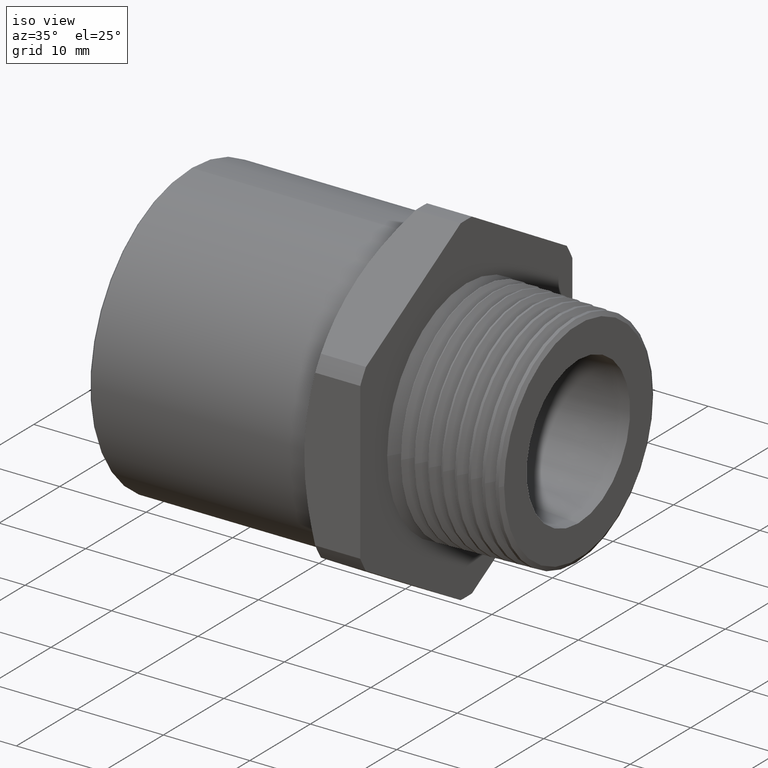
[diagram: clean part render]
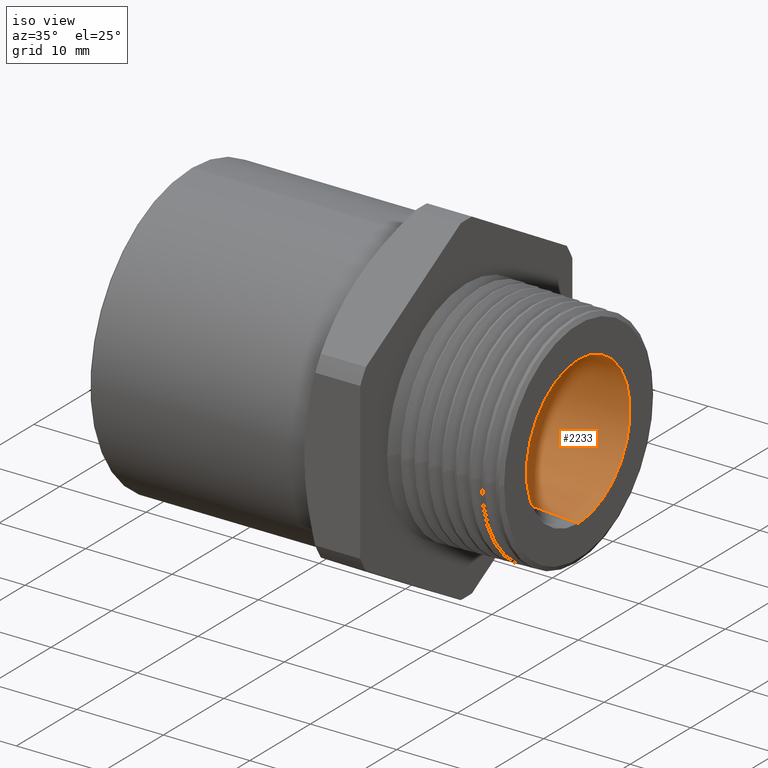
[diagram: same view with one face highlighted and labeled with its STEP entity id]
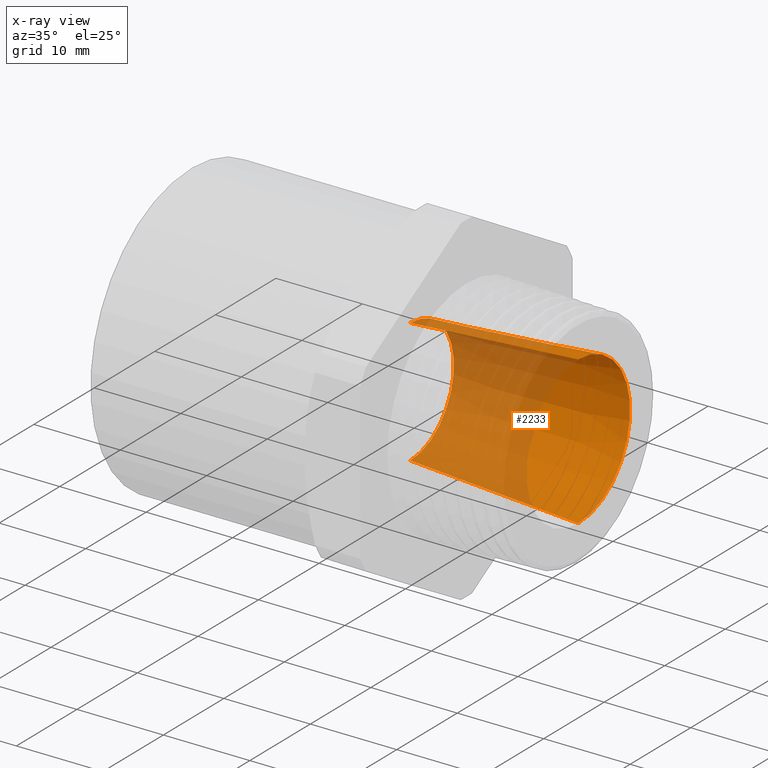
[diagram: x-ray of the same camera — body ghosted, the highlighted face saturated]
A machine part, iso view. The second image highlights one B-rep face of the part: STEP entity #2233.
The next image is the same camera in x-ray: the body ghosted, the highlighted face saturated — about 54% of this face is hidden behind the body in this view.
In plain terms, the highlighted conical surface has half-angle 4 deg.
Its self-contained STEP definition (entity closure, byte-faithful):
#108 = EDGE_CURVE ( 'NONE', #121, #110, #739, .T. ) ;
#110 = VERTEX_POINT ( 'NONE', #735 ) ;
#114 = VERTEX_POINT ( 'NONE', #734 ) ;
#115 = EDGE_CURVE ( 'NONE', #122, #114, #733, .T. ) ;
#121 = VERTEX_POINT ( 'NONE', #719 ) ;
#122 = VERTEX_POINT ( 'NONE', #718 ) ;
#144 = ORIENTED_EDGE ( 'NONE', *, *, #434, .F. ) ;
#145 = ORIENTED_EDGE ( 'NONE', *, *, #108, .T. ) ;
#146 = EDGE_CURVE ( 'NONE', #122, #121, #804, .T. ) ;
#147 = ORIENTED_EDGE ( 'NONE', *, *, #115, .F. ) ;
#148 = ORIENTED_EDGE ( 'NONE', *, *, #146, .T. ) ;
#149 = EDGE_LOOP ( 'NONE', ( #147, #148, #145, #144 ) ) ;
#434 = EDGE_CURVE ( 'NONE', #114, #110, #1360, .T. ) ;
#718 = CARTESIAN_POINT ( 'NONE',  ( -0.7649999999999999000, 3.796368406145965300E-017, 0.2832500000000000000 ) ) ;
#719 = CARTESIAN_POINT ( 'NONE',  ( -0.7649999999999999000, 0.0000000000000000000, -0.2832500000000000000 ) ) ;
#730 = DIRECTION ( 'NONE',  ( 0.9975640502598242000, 8.542704229054969400E-018, 0.06975647374412551100 ) ) ;
#731 = VECTOR ( 'NONE', #730, 39.37007874015748900 ) ;
#732 = CARTESIAN_POINT ( 'NONE',  ( -0.7649999999999999000, 3.468812058584878600E-017, 0.2832500000000000000 ) ) ;
#733 = LINE ( 'NONE', #732, #731 ) ;
#734 = CARTESIAN_POINT ( 'NONE',  ( 1.365923996832131600E-016, 4.123924753707052700E-017, 0.3367440111367856500 ) ) ;
#735 = CARTESIAN_POINT ( 'NONE',  ( 1.365923996832131600E-016, 0.0000000000000000000, -0.3367440111367856500 ) ) ;
#736 = DIRECTION ( 'NONE',  ( 0.9975640502598242000, 0.0000000000000000000, -0.06975647374412551100 ) ) ;
#737 = VECTOR ( 'NONE', #736, 39.37007874015748900 ) ;
#738 = CARTESIAN_POINT ( 'NONE',  ( -0.7649999999999999000, 0.0000000000000000000, -0.2832500000000000000 ) ) ;
#739 = LINE ( 'NONE', #738, #737 ) ;
#744 = CARTESIAN_POINT ( 'NONE',  ( -0.7649999999999999000, 0.0000000000000000000, 0.0000000000000000000 ) ) ;
#801 = DIRECTION ( 'NONE',  ( 0.0000000000000000000, 0.0000000000000000000, 1.000000000000000000 ) ) ;
#802 = DIRECTION ( 'NONE',  ( -1.000000000000000000, 0.0000000000000000000, 0.0000000000000000000 ) ) ;
#803 = AXIS2_PLACEMENT_3D ( 'NONE', #744, #802, #801 ) ;
#804 = CIRCLE ( 'NONE', #803, 0.2832500000000000000 ) ;
#1360 = CIRCLE ( 'NONE', #1416, 0.3367440111367856500 ) ;
#1413 = DIRECTION ( 'NONE',  ( 0.0000000000000000000, 0.0000000000000000000, 1.000000000000000000 ) ) ;
#1414 = DIRECTION ( 'NONE',  ( -1.000000000000000000, 0.0000000000000000000, 0.0000000000000000000 ) ) ;
#1415 = CARTESIAN_POINT ( 'NONE',  ( 1.365923996832131600E-016, 0.0000000000000000000, 0.0000000000000000000 ) ) ;
#1416 = AXIS2_PLACEMENT_3D ( 'NONE', #1415, #1414, #1413 ) ;
#1455 = DIRECTION ( 'NONE',  ( 0.0000000000000000000, 0.0000000000000000000, -1.000000000000000000 ) ) ;
#1456 = DIRECTION ( 'NONE',  ( 1.000000000000000000, 0.0000000000000000000, 0.0000000000000000000 ) ) ;
#1457 = AXIS2_PLACEMENT_3D ( 'NONE', #1460, #1456, #1455 ) ;
#1458 = CONICAL_SURFACE ( 'NONE', #1457, 0.2832500000000000000, 0.06981317007977339000 ) ;
#1460 = CARTESIAN_POINT ( 'NONE',  ( -0.7649999999999999000, 0.0000000000000000000, 0.0000000000000000000 ) ) ;
#1461 = FACE_OUTER_BOUND ( 'NONE', #149, .T. ) ;
#2233 = ADVANCED_FACE ( 'NONE', ( #1461 ), #1458, .F. ) ;